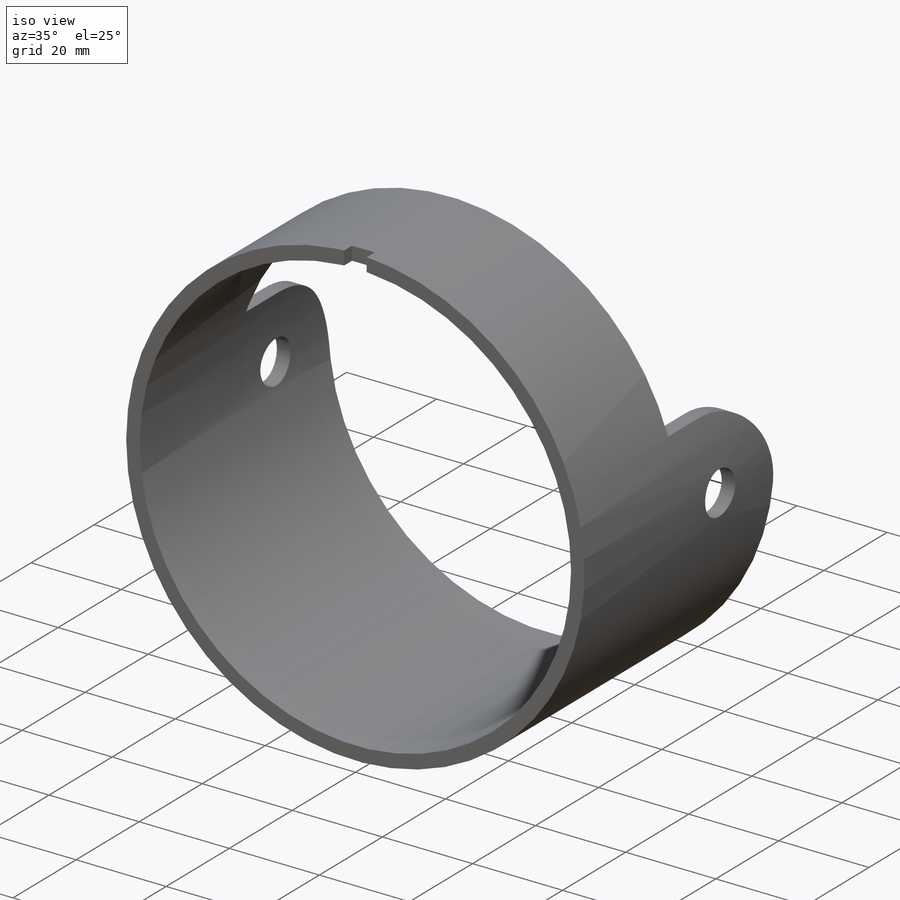
[diagram: iso view]
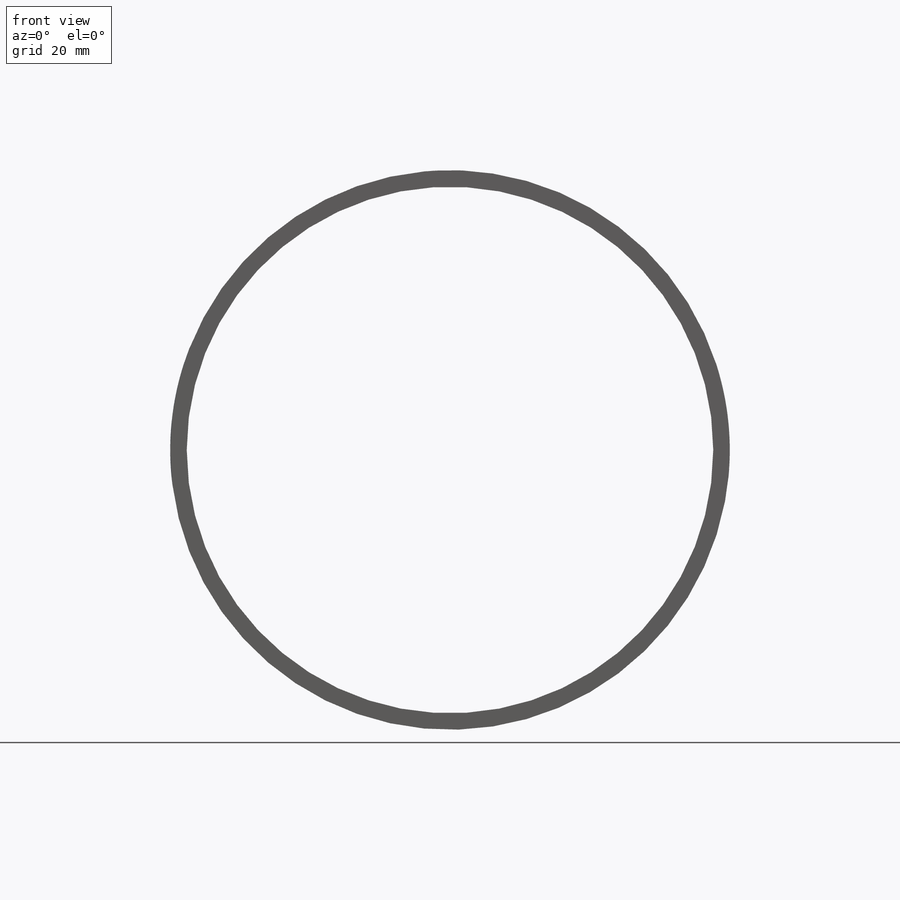
[diagram: front view]
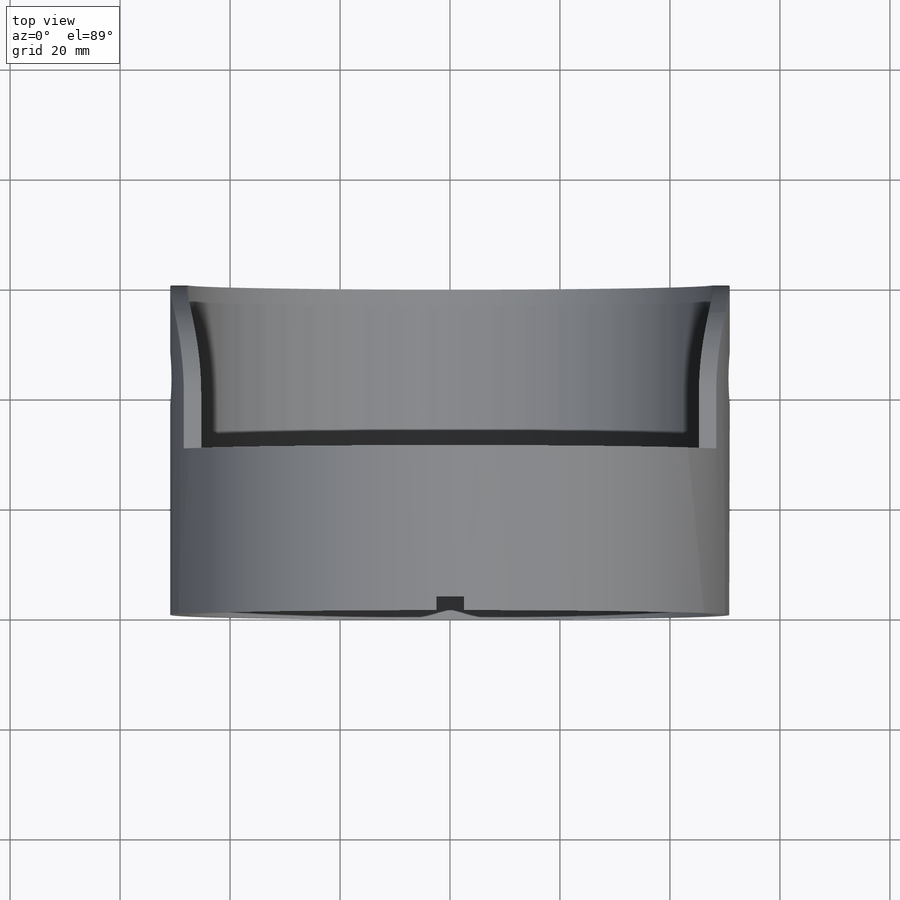
[diagram: top view]
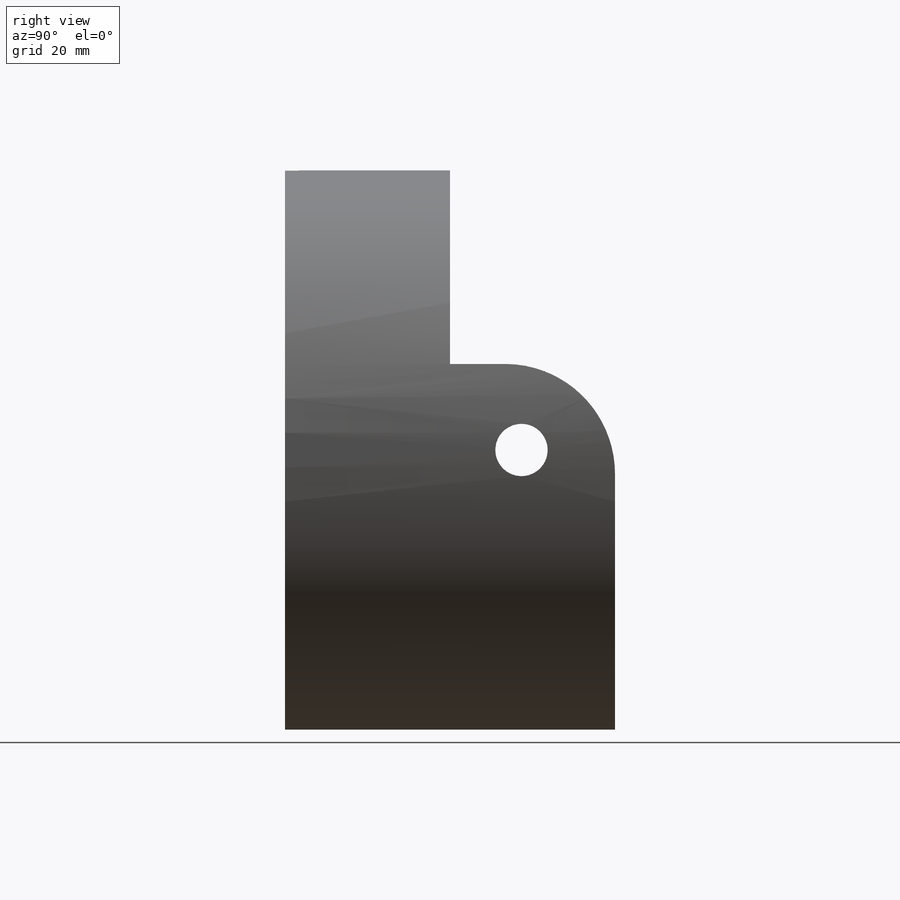
[diagram: right view]
SOLIDWORKS PART (.sldprt)
format: sldprt  version: not decoded by parser v0  size: 186,880 bytes
history: native  units: mm
features: sketch x4, cut_extrude x3, material x1, extrude x1, fillet x1 (+11 scaffold rows collapsed)
feature tree (21):
  scaffold x11  (default folders/planes/origin — collapsed)
  material  "Material <not specified>"
  sketch  "Sketch2"  dims[D1=95.75mm D2=3.0mm]
  extrude  "Boss-Extrude1"  Depth=60mm
  sketch  "Sketch3"
  cut_extrude  "Cut-Extrude2"  Depth=60mm
  sketch  "Sketch4"  dims[D2=9.53mm D1=17.0mm]
  cut_extrude  "Cut-Extrude3"  [1 undecoded]
  fillet  "Fillet1"  Radius=20mm
  sketch  "Sketch5"  dims[D1=5.0mm D2=5.0mm]
  cut_extrude  "Cut-Extrude4"  Depth=60mm
decode coverage: 7 of 9 modeling features carry decoded parameters
note: 1 parameter value undecoded
note: suppression state not decoded; provenance and decode notes live in map.json
